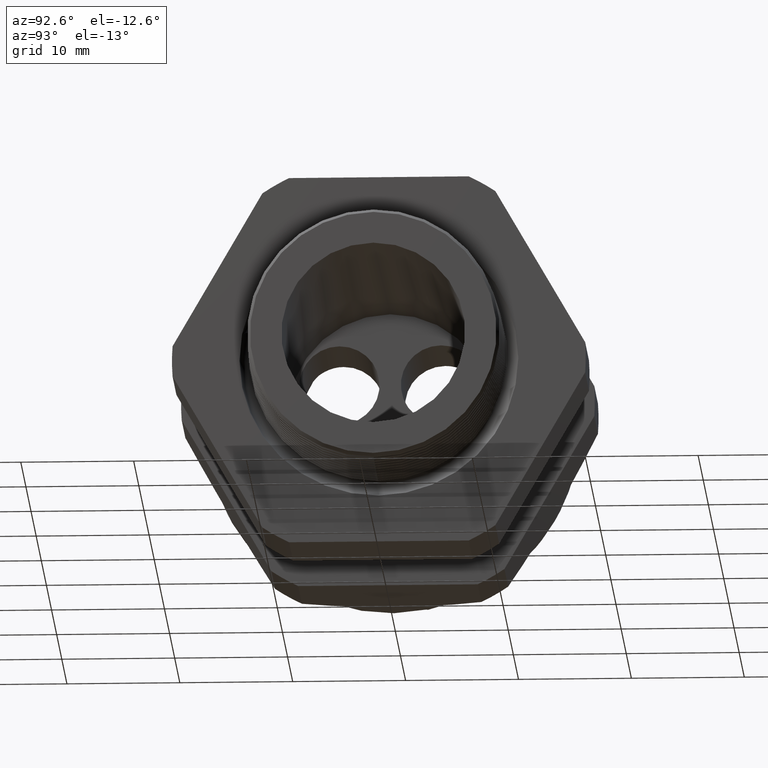
[diagram: clean part render]
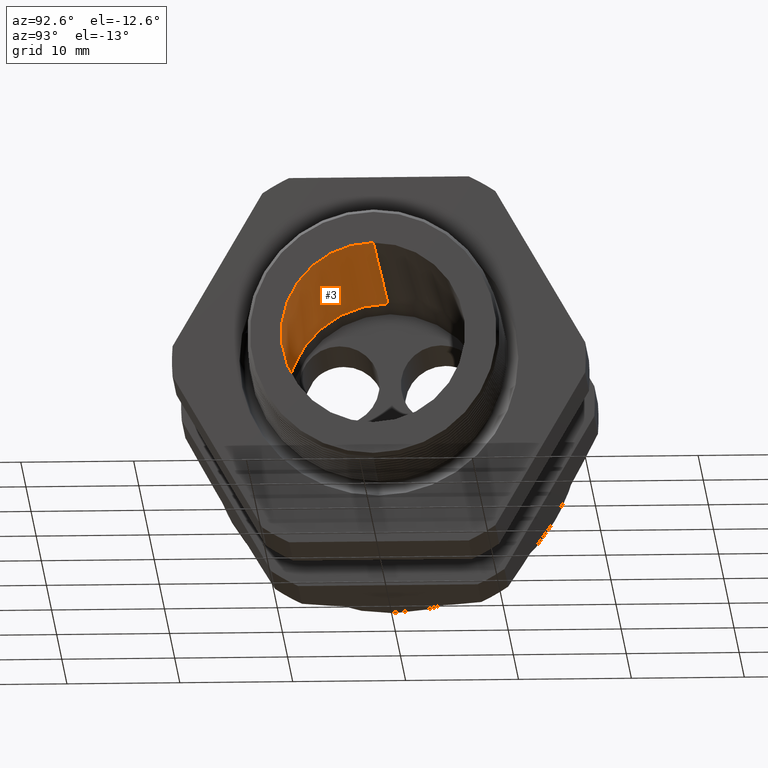
[diagram: same view with one face highlighted and labeled with its STEP entity id]
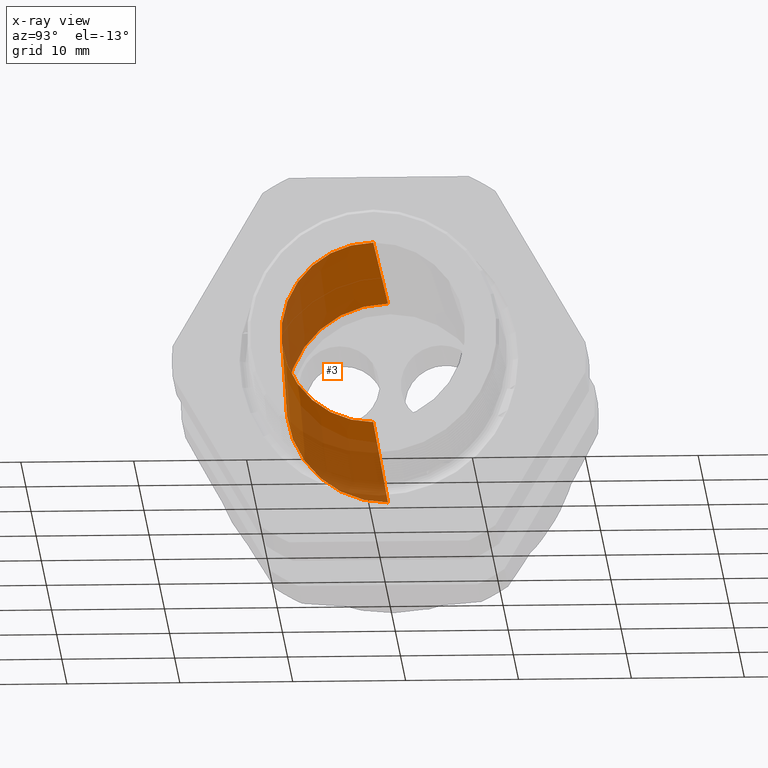
[diagram: x-ray of the same camera — body ghosted, the highlighted face saturated]
A machine part, auxiliary view. The second image highlights one B-rep face of the part: STEP entity #3.
The next image is the same camera in x-ray: the body ghosted, the highlighted face saturated — about 39% of this face is hidden behind the body in this view.
In plain terms, the highlighted conical surface has half-angle 1.753 deg.
Its self-contained STEP definition (entity closure, byte-faithful):
#3 = ADVANCED_FACE ( 'NONE', ( #1500 ), #1498, .F. ) ;
#44 = ORIENTED_EDGE ( 'NONE', *, *, #51, .F. ) ;
#47 = VERTEX_POINT ( 'NONE', #1609 ) ;
#51 = EDGE_CURVE ( 'NONE', #237, #47, #1603, .T. ) ;
#66 = ORIENTED_EDGE ( 'NONE', *, *, #67, .F. ) ;
#67 = EDGE_CURVE ( 'NONE', #47, #234, #1632, .T. ) ;
#79 = EDGE_CURVE ( 'NONE', #237, #238, #1670, .T. ) ;
#80 = EDGE_LOOP ( 'NONE', ( #81, #239, #66, #44 ) ) ;
#81 = ORIENTED_EDGE ( 'NONE', *, *, #79, .T. ) ;
#234 = VERTEX_POINT ( 'NONE', #1983 ) ;
#235 = EDGE_CURVE ( 'NONE', #238, #234, #1982, .T. ) ;
#237 = VERTEX_POINT ( 'NONE', #1978 ) ;
#238 = VERTEX_POINT ( 'NONE', #1977 ) ;
#239 = ORIENTED_EDGE ( 'NONE', *, *, #235, .T. ) ;
#1495 = DIRECTION ( 'NONE',  ( 0.0000000000000000000, 0.0000000000000000000, 1.000000000000000000 ) ) ;
#1496 = DIRECTION ( 'NONE',  ( -1.000000000000000000, 0.0000000000000000000, 0.0000000000000000000 ) ) ;
#1497 = AXIS2_PLACEMENT_3D ( 'NONE', #1499, #1496, #1495 ) ;
#1498 = CONICAL_SURFACE ( 'NONE', #1497, 0.3549999999999999800, 0.03059991300296905500 ) ;
#1499 = CARTESIAN_POINT ( 'NONE',  ( -1.010314960629921100, 0.0000000000000000000, 0.0000000000000000000 ) ) ;
#1500 = FACE_OUTER_BOUND ( 'NONE', #80, .T. ) ;
#1600 = DIRECTION ( 'NONE',  ( -0.9995318591926351000, 0.0000000000000000000, 0.03059513783126741000 ) ) ;
#1601 = VECTOR ( 'NONE', #1600, 39.37007874015748900 ) ;
#1602 = CARTESIAN_POINT ( 'NONE',  ( -1.010314960629921100, 0.0000000000000000000, 0.3549999999999999800 ) ) ;
#1603 = LINE ( 'NONE', #1602, #1601 ) ;
#1609 = CARTESIAN_POINT ( 'NONE',  ( -1.010314960629921100, 4.347496136973103500E-017, 0.3549999999999999800 ) ) ;
#1628 = DIRECTION ( 'NONE',  ( 0.0000000000000000000, 0.0000000000000000000, -1.000000000000000000 ) ) ;
#1629 = DIRECTION ( 'NONE',  ( 1.000000000000000000, 0.0000000000000000000, 0.0000000000000000000 ) ) ;
#1630 = CARTESIAN_POINT ( 'NONE',  ( -1.010314960629921100, 0.0000000000000000000, 0.0000000000000000000 ) ) ;
#1631 = AXIS2_PLACEMENT_3D ( 'NONE', #1630, #1629, #1628 ) ;
#1632 = CIRCLE ( 'NONE', #1631, 0.3549999999999999800 ) ;
#1667 = DIRECTION ( 'NONE',  ( 0.0000000000000000000, 0.0000000000000000000, -1.000000000000000000 ) ) ;
#1668 = DIRECTION ( 'NONE',  ( 1.000000000000000000, 0.0000000000000000000, 0.0000000000000000000 ) ) ;
#1669 = AXIS2_PLACEMENT_3D ( 'NONE', #1676, #1668, #1667 ) ;
#1670 = CIRCLE ( 'NONE', #1669, 0.3204016610924743100 ) ;
#1676 = CARTESIAN_POINT ( 'NONE',  ( 0.1200000000000000200, 0.0000000000000000000, 0.0000000000000000000 ) ) ;
#1977 = CARTESIAN_POINT ( 'NONE',  ( 0.1200000000000000200, 4.135642411978520400E-017, -0.3204016610924743100 ) ) ;
#1978 = CARTESIAN_POINT ( 'NONE',  ( 0.1200000000000000200, 0.0000000000000000000, 0.3204016610924743100 ) ) ;
#1979 = DIRECTION ( 'NONE',  ( -0.9995318591926351000, 3.746823761453372400E-018, -0.03059513783126741000 ) ) ;
#1980 = VECTOR ( 'NONE', #1979, 39.37007874015748900 ) ;
#1981 = CARTESIAN_POINT ( 'NONE',  ( -1.010314960629921100, 4.347496136973103500E-017, -0.3549999999999999800 ) ) ;
#1982 = LINE ( 'NONE', #1981, #1980 ) ;
#1983 = CARTESIAN_POINT ( 'NONE',  ( -1.010314960629921100, 0.0000000000000000000, -0.3549999999999999800 ) ) ;